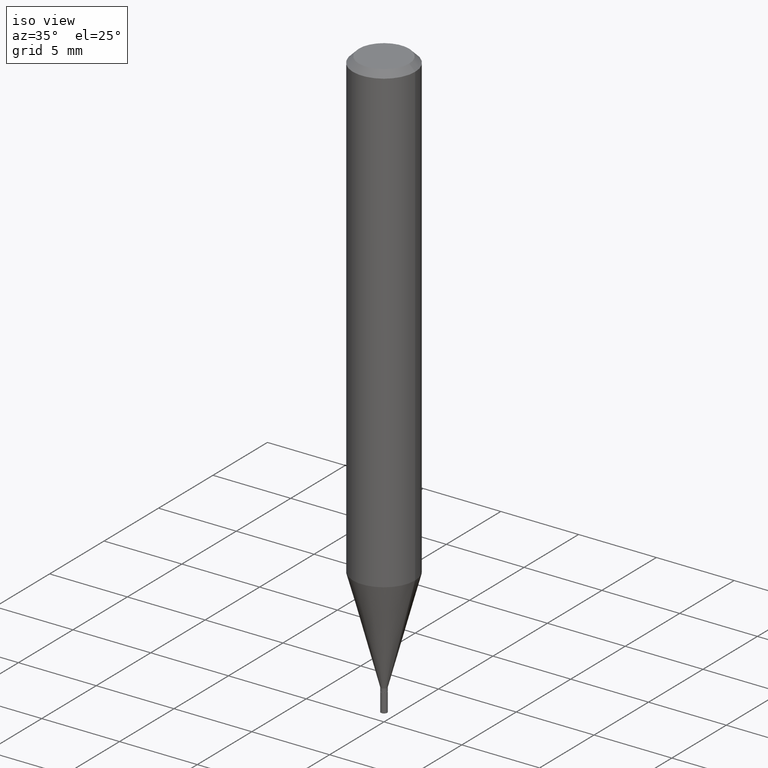
[diagram: clean part render]
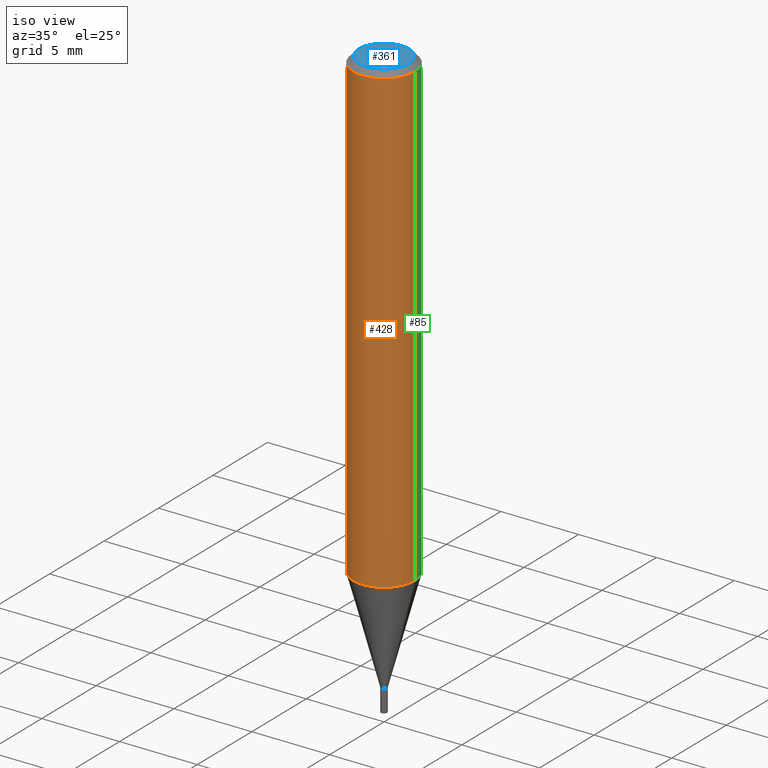
[diagram: same view with three faces highlighted in distinct colors, each labeled with its STEP entity id]
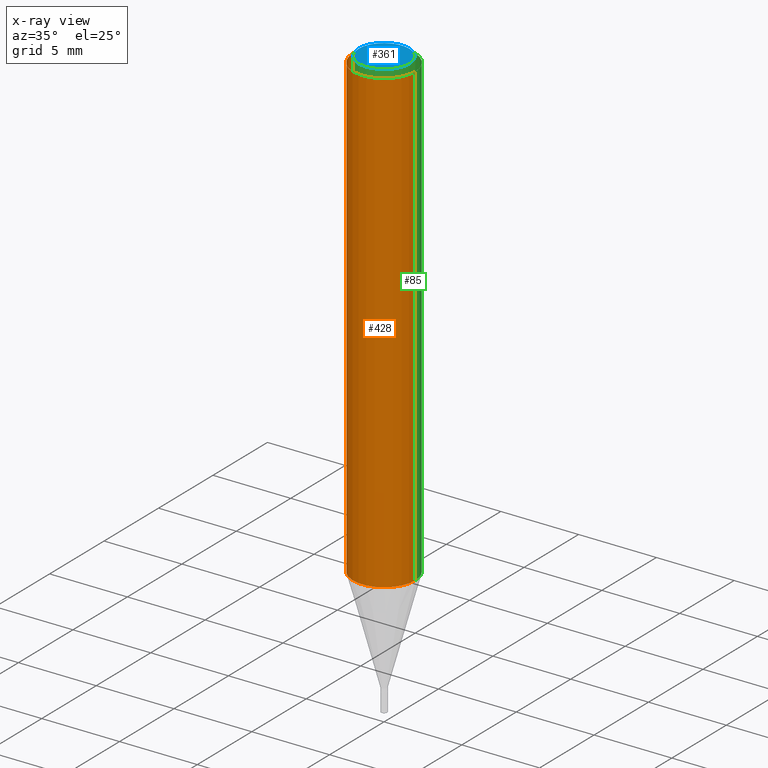
[diagram: x-ray of the same camera — body ghosted, the three highlighted faces saturated]
A machine part, iso view with three faces highlighted in distinct colors.
The next image is the same camera in x-ray (body ghosted, the three faces saturated) — at least one of them is partly hidden behind the body in this view.
Their STEP definitions:

[orange] entity #428 — the highlighted cylindrical surface (partial cylindrical patch) has radius 2.0002 mm, axis along (-0, 0, 1).
#3 = LINE ( 'NONE', #192, #130 ) ;
#5 = ORIENTED_EDGE ( 'NONE', *, *, #166, .F. ) ;
#16 = AXIS2_PLACEMENT_3D ( 'NONE', #261, #373, #157 ) ;
#37 = VERTEX_POINT ( 'NONE', #173 ) ;
#40 = CARTESIAN_POINT ( 'NONE',  ( 0.000000000000000000, 0.000000000000000000, 0.000000000000000000 ) ) ;
#42 = ORIENTED_EDGE ( 'NONE', *, *, #153, .F. ) ;
#44 = AXIS2_PLACEMENT_3D ( 'NONE', #40, #292, #414 ) ;
#55 = DIRECTION ( 'NONE',  ( -2.445468806185136877E-29, 3.491481338843145188E-15, 1.000000000000000000 ) ) ;
#61 = AXIS2_PLACEMENT_3D ( 'NONE', #107, #386, #454 ) ;
#64 = CIRCLE ( 'NONE', #61, 0.07875000000000000056 ) ;
#70 = FACE_OUTER_BOUND ( 'NONE', #441, .T. ) ;
#107 = CARTESIAN_POINT ( 'NONE',  ( 2.881734566564904705E-29, -4.114353222258558176E-15, -1.178397597743367164 ) ) ;
#123 = DIRECTION ( 'NONE',  ( -2.445468806185136877E-29, 3.491481338843145188E-15, 1.000000000000000000 ) ) ;
#126 = CIRCLE ( 'NONE', #16, 0.07875000000000000056 ) ;
#130 = VECTOR ( 'NONE', #123, 39.37007874015748143 ) ;
#147 = CARTESIAN_POINT ( 'NONE',  ( -0.07874999999999997280, -3.554800817847479374E-15, -1.178397597743367164 ) ) ;
#153 = EDGE_CURVE ( 'NONE', #365, #317, #3, .T. ) ;
#157 = DIRECTION ( 'NONE',  ( 1.000000000000000000, -6.982962677686265922E-15, 0.000000000000000000 ) ) ;
#164 = CARTESIAN_POINT ( 'NONE',  ( -0.07875000000000000056, -1.523810316759523826E-15, -0.01499999999999999944 ) ) ;
#166 = EDGE_CURVE ( 'NONE', #317, #369, #126, .T. ) ;
#173 = CARTESIAN_POINT ( 'NONE',  ( 0.07874999999999997280, -4.664261533126351521E-15, -1.178397597743367164 ) ) ;
#192 = CARTESIAN_POINT ( 'NONE',  ( -0.07875000000000000056, 5.595524044110789003E-16, -3.873661383575737792E-30 ) ) ;
#214 = CYLINDRICAL_SURFACE ( 'NONE', #44, 0.07875000000000000056 ) ;
#231 = LINE ( 'NONE', #442, #282 ) ;
#236 = EDGE_CURVE ( 'NONE', #37, #369, #231, .T. ) ;
#261 = CARTESIAN_POINT ( 'NONE',  ( 3.668203209277705088E-31, -5.237222008264718399E-17, -0.01499999999999999944 ) ) ;
#282 = VECTOR ( 'NONE', #55, 39.37007874015748143 ) ;
#292 = DIRECTION ( 'NONE',  ( -2.445468806185136597E-29, 3.491481338843145583E-15, 1.000000000000000000 ) ) ;
#317 = VERTEX_POINT ( 'NONE', #164 ) ;
#360 = ORIENTED_EDGE ( 'NONE', *, *, #236, .T. ) ;
#365 = VERTEX_POINT ( 'NONE', #147 ) ;
#369 = VERTEX_POINT ( 'NONE', #424 ) ;
#373 = DIRECTION ( 'NONE',  ( -2.445468806185136597E-29, 3.491481338843145583E-15, 1.000000000000000000 ) ) ;
#382 = EDGE_CURVE ( 'NONE', #365, #37, #64, .T. ) ;
#386 = DIRECTION ( 'NONE',  ( -2.445468806185136597E-29, 3.491481338843145583E-15, 1.000000000000000000 ) ) ;
#414 = DIRECTION ( 'NONE',  ( 1.000000000000000000, -6.982962677686265922E-15, 4.876176775795935232E-29 ) ) ;
#424 = CARTESIAN_POINT ( 'NONE',  ( 0.07875000000000000056, -6.022805309504406221E-16, -0.01499999999999999944 ) ) ;
#428 = ADVANCED_FACE ( 'NONE', ( #70 ), #214, .T. ) ;
#430 = ORIENTED_EDGE ( 'NONE', *, *, #382, .T. ) ;
#441 = EDGE_LOOP ( 'NONE', ( #42, #430, #360, #5 ) ) ;
#442 = CARTESIAN_POINT ( 'NONE',  ( 0.07875000000000000056, -5.499083108677934443E-16, 3.839989210939299016E-30 ) ) ;
#454 = DIRECTION ( 'NONE',  ( 1.000000000000000000, -6.982962677686268288E-15, 0.000000000000000000 ) ) ;

[blue] entity #361 — the highlighted planar face has unit normal (0, -0, -1).
#27 = CIRCLE ( 'NONE', #318, 0.06375000000000000111 ) ;
#41 = ORIENTED_EDGE ( 'NONE', *, *, #253, .T. ) ;
#51 = DIRECTION ( 'NONE',  ( 1.000000000000000000, -6.982962677686265922E-15, 4.852736867747365646E-29 ) ) ;
#62 = DIRECTION ( 'NONE',  ( -2.445468806185136597E-29, 3.491481338843145583E-15, 1.000000000000000000 ) ) ;
#74 = CIRCLE ( 'NONE', #398, 0.06375000000000000111 ) ;
#135 = VERTEX_POINT ( 'NONE', #401 ) ;
#141 = PLANE ( 'NONE',  #438 ) ;
#168 = DIRECTION ( 'NONE',  ( 1.000000000000000000, -6.982962677686265922E-15, 4.852736867747365646E-29 ) ) ;
#189 = CARTESIAN_POINT ( 'NONE',  ( 4.238298707151779182E-45, -6.051167288266434563E-31, -1.733123193570155259E-16 ) ) ;
#205 = CARTESIAN_POINT ( 'NONE',  ( 4.451638707024993845E-16, 0.06375000000000000111, -3.092380950297582687E-16 ) ) ;
#244 = CARTESIAN_POINT ( 'NONE',  ( 4.238298707151779182E-45, -6.051167288266434563E-31, -1.733123193570155259E-16 ) ) ;
#251 = DIRECTION ( 'NONE',  ( -1.000000000000000000, 6.982962677686265922E-15, -4.876176775795935793E-29 ) ) ;
#253 = EDGE_CURVE ( 'NONE', #299, #135, #74, .T. ) ;
#260 = ORIENTED_EDGE ( 'NONE', *, *, #387, .T. ) ;
#297 = EDGE_LOOP ( 'NONE', ( #260, #41 ) ) ;
#299 = VERTEX_POINT ( 'NONE', #420 ) ;
#318 = AXIS2_PLACEMENT_3D ( 'NONE', #189, #394, #51 ) ;
#327 = FACE_OUTER_BOUND ( 'NONE', #297, .T. ) ;
#355 = DIRECTION ( 'NONE',  ( 2.438088387897960049E-29, -3.491481338843145188E-15, -1.000000000000000000 ) ) ;
#361 = ADVANCED_FACE ( 'NONE', ( #327 ), #141, .F. ) ;
#387 = EDGE_CURVE ( 'NONE', #135, #299, #27, .T. ) ;
#394 = DIRECTION ( 'NONE',  ( -2.445468806185136597E-29, 3.491481338843145583E-15, 1.000000000000000000 ) ) ;
#398 = AXIS2_PLACEMENT_3D ( 'NONE', #244, #62, #168 ) ;
#401 = CARTESIAN_POINT ( 'NONE',  ( -0.06375000000000000111, 4.713499807438226283E-16, -1.733123193570187553E-16 ) ) ;
#420 = CARTESIAN_POINT ( 'NONE',  ( 0.06375000000000000111, -5.149965923825455224E-16, -1.733123193570121732E-16 ) ) ;
#438 = AXIS2_PLACEMENT_3D ( 'NONE', #205, #355, #251 ) ;

[green] entity #85 — the highlighted cylindrical surface (partial cylindrical patch) has radius 2.0002 mm, axis along (-0, 0, 1).
#3 = LINE ( 'NONE', #192, #130 ) ;
#15 = CARTESIAN_POINT ( 'NONE',  ( 2.881734566564904705E-29, -4.114353222258558176E-15, -1.178397597743367164 ) ) ;
#31 = FACE_OUTER_BOUND ( 'NONE', #105, .T. ) ;
#32 = CIRCLE ( 'NONE', #48, 0.07875000000000000056 ) ;
#37 = VERTEX_POINT ( 'NONE', #173 ) ;
#48 = AXIS2_PLACEMENT_3D ( 'NONE', #273, #117, #223 ) ;
#55 = DIRECTION ( 'NONE',  ( -2.445468806185136877E-29, 3.491481338843145188E-15, 1.000000000000000000 ) ) ;
#81 = DIRECTION ( 'NONE',  ( 1.000000000000000000, -6.982962677686268288E-15, 0.000000000000000000 ) ) ;
#85 = ADVANCED_FACE ( 'NONE', ( #31 ), #326, .T. ) ;
#105 = EDGE_LOOP ( 'NONE', ( #404, #263, #139, #145 ) ) ;
#117 = DIRECTION ( 'NONE',  ( -2.445468806185136597E-29, 3.491481338843145583E-15, 1.000000000000000000 ) ) ;
#123 = DIRECTION ( 'NONE',  ( -2.445468806185136877E-29, 3.491481338843145188E-15, 1.000000000000000000 ) ) ;
#130 = VECTOR ( 'NONE', #123, 39.37007874015748143 ) ;
#139 = ORIENTED_EDGE ( 'NONE', *, *, #144, .F. ) ;
#144 = EDGE_CURVE ( 'NONE', #369, #317, #32, .T. ) ;
#145 = ORIENTED_EDGE ( 'NONE', *, *, #236, .F. ) ;
#147 = CARTESIAN_POINT ( 'NONE',  ( -0.07874999999999997280, -3.554800817847479374E-15, -1.178397597743367164 ) ) ;
#153 = EDGE_CURVE ( 'NONE', #365, #317, #3, .T. ) ;
#164 = CARTESIAN_POINT ( 'NONE',  ( -0.07875000000000000056, -1.523810316759523826E-15, -0.01499999999999999944 ) ) ;
#173 = CARTESIAN_POINT ( 'NONE',  ( 0.07874999999999997280, -4.664261533126351521E-15, -1.178397597743367164 ) ) ;
#176 = EDGE_CURVE ( 'NONE', #37, #365, #352, .T. ) ;
#178 = CARTESIAN_POINT ( 'NONE',  ( 0.000000000000000000, 0.000000000000000000, 0.000000000000000000 ) ) ;
#192 = CARTESIAN_POINT ( 'NONE',  ( -0.07875000000000000056, 5.595524044110789003E-16, -3.873661383575737792E-30 ) ) ;
#199 = AXIS2_PLACEMENT_3D ( 'NONE', #178, #462, #293 ) ;
#223 = DIRECTION ( 'NONE',  ( 1.000000000000000000, -6.982962677686265922E-15, 0.000000000000000000 ) ) ;
#231 = LINE ( 'NONE', #442, #282 ) ;
#236 = EDGE_CURVE ( 'NONE', #37, #369, #231, .T. ) ;
#263 = ORIENTED_EDGE ( 'NONE', *, *, #153, .T. ) ;
#273 = CARTESIAN_POINT ( 'NONE',  ( 3.668203209277705088E-31, -5.237222008264718399E-17, -0.01499999999999999944 ) ) ;
#282 = VECTOR ( 'NONE', #55, 39.37007874015748143 ) ;
#293 = DIRECTION ( 'NONE',  ( 1.000000000000000000, -6.982962677686265922E-15, 4.876176775795935232E-29 ) ) ;
#317 = VERTEX_POINT ( 'NONE', #164 ) ;
#326 = CYLINDRICAL_SURFACE ( 'NONE', #199, 0.07875000000000000056 ) ;
#352 = CIRCLE ( 'NONE', #460, 0.07875000000000000056 ) ;
#365 = VERTEX_POINT ( 'NONE', #147 ) ;
#369 = VERTEX_POINT ( 'NONE', #424 ) ;
#404 = ORIENTED_EDGE ( 'NONE', *, *, #176, .T. ) ;
#405 = DIRECTION ( 'NONE',  ( -2.445468806185136597E-29, 3.491481338843145583E-15, 1.000000000000000000 ) ) ;
#424 = CARTESIAN_POINT ( 'NONE',  ( 0.07875000000000000056, -6.022805309504406221E-16, -0.01499999999999999944 ) ) ;
#442 = CARTESIAN_POINT ( 'NONE',  ( 0.07875000000000000056, -5.499083108677934443E-16, 3.839989210939299016E-30 ) ) ;
#460 = AXIS2_PLACEMENT_3D ( 'NONE', #15, #405, #81 ) ;
#462 = DIRECTION ( 'NONE',  ( -2.445468806185136597E-29, 3.491481338843145583E-15, 1.000000000000000000 ) ) ;